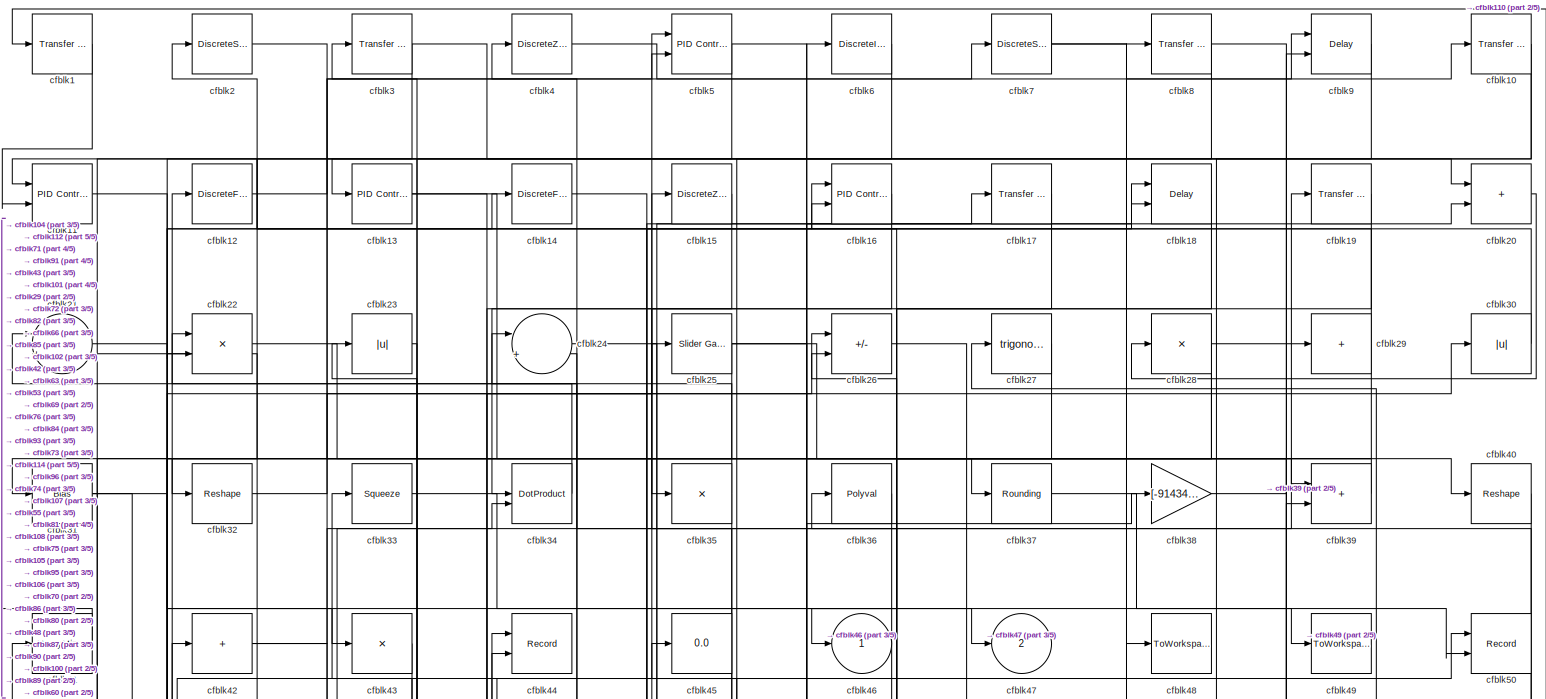
[diagram: root canvas - part 1/5, full width, top band]
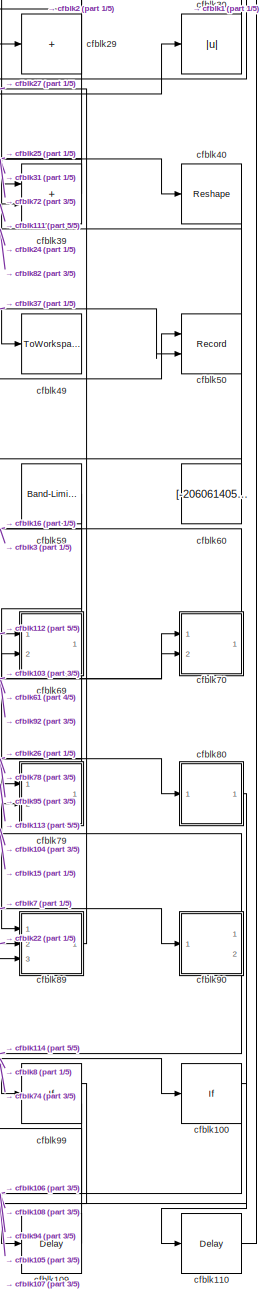
[diagram: root canvas - part 2/5, middle right region]
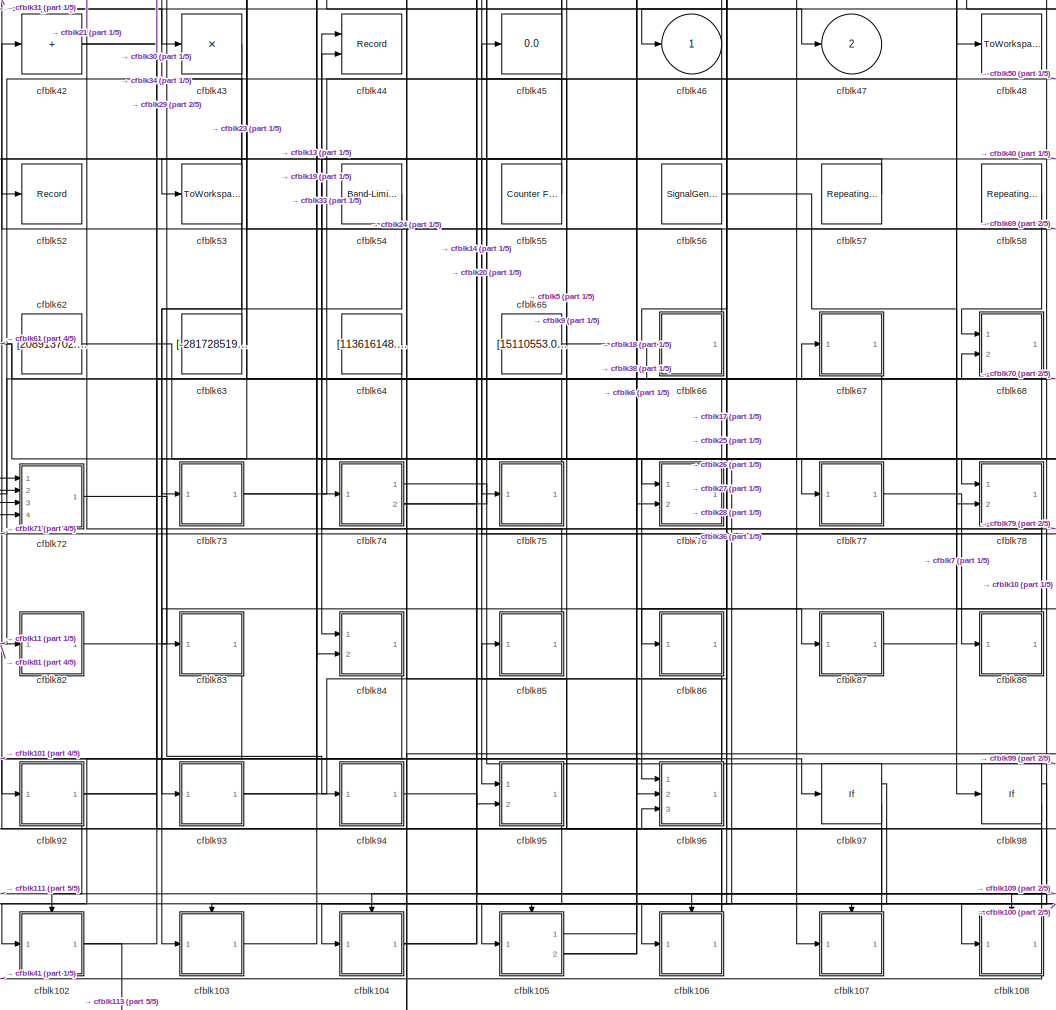
[diagram: root canvas - part 3/5, central region]
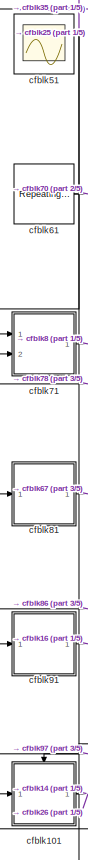
[diagram: root canvas - part 4/5, bottom left region]
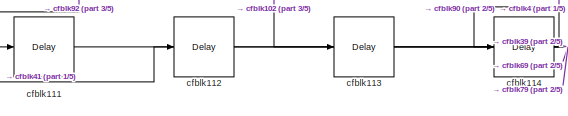
[diagram: root canvas - part 5/5, bottom left region]
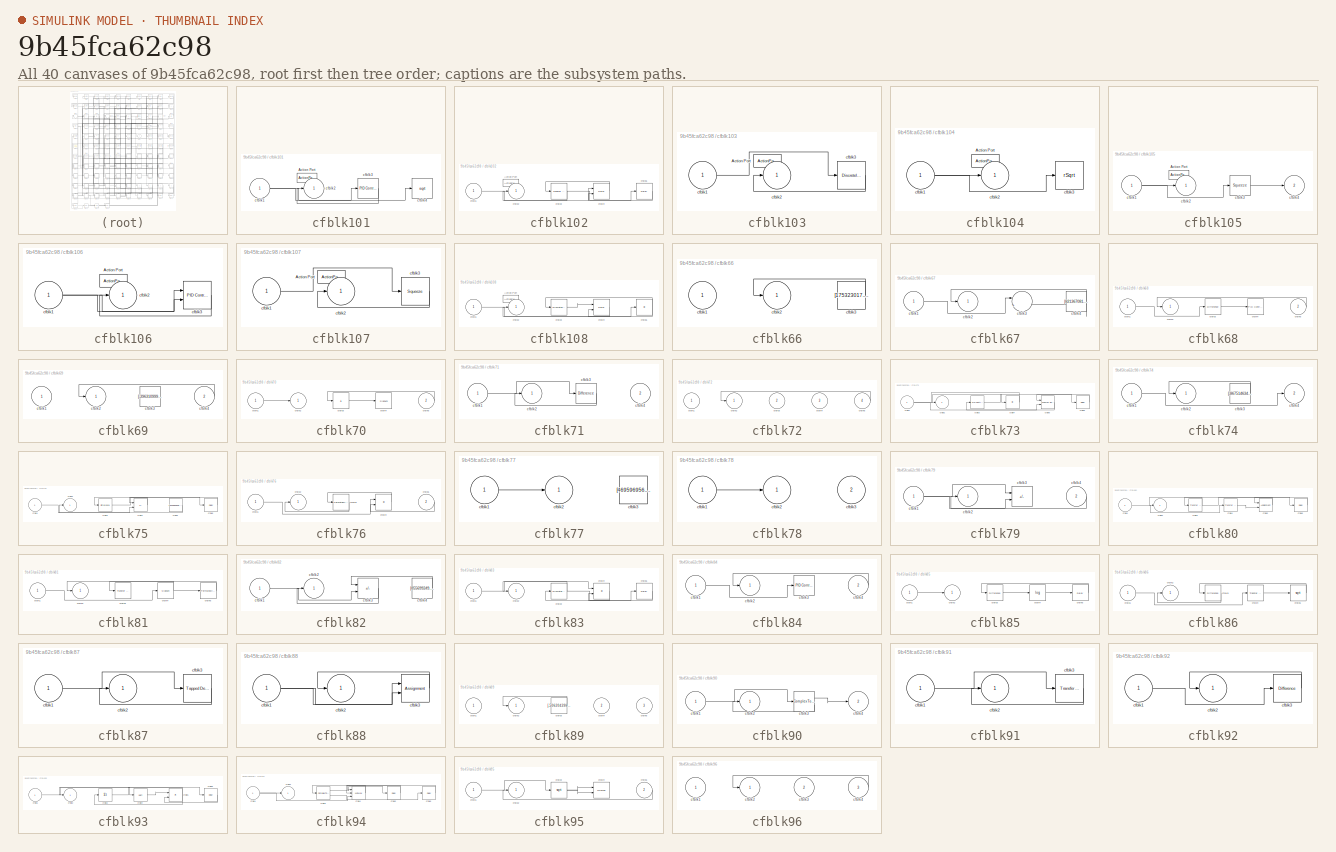
[diagram: thumbnail index - all 40 canvases of the model, root first then tree order]
MODEL slx_9b45fca62c98
KIND model
CONFIG AbsTol = auto
CONFIG EnableMultiTasking = off
CONFIG FixedStep = auto
CONFIG MaxStep = auto
CONFIG MinStep = auto
CONFIG RelTol = 1e-3
CONFIG SampleTimeConstraint = Unconstrained
CONFIG SolverName = VariableStepAuto
CONFIG StartTime = 0.0
CONFIG StopTime = 10.0
BLOCK [Reference] cfblk1  REF=simulink/Discrete/Transfer Fcn
Real Zero
  Ports = [1, 1]
  SourceBlock = simulink/Discrete/Transfer Fcn\nReal Zero
  SourceProductBaseCode = SL
  SourceType = Transfer Fcn Real Zero
BLOCK [Reference] cfblk10  REF=simulink/Discrete/Transfer Fcn
Real Zero
  Ports = [1, 1]
  SourceBlock = simulink/Discrete/Transfer Fcn\nReal Zero
  SourceProductBaseCode = SL
  SourceType = Transfer Fcn Real Zero
BLOCK [If] cfblk100
  IfExpression = u1 >= 0
  Ports = [1, 2]
  SampleTime = 1
BLOCK [SubSystem] cfblk101
  Ports = [1, 1, 0, 0, 0, 0, 0, 1]
  RequestExecContextInheritance = off
  TreatAsAtomicUnit = on
BLOCK [ActionPort] cfblk101/Action Port
  ActionPortLabel = if(u1 >= 0)
BLOCK [Inport] cfblk101/cfblk1
BLOCK [Outport] cfblk101/cfblk2
BLOCK [Reference] cfblk101/cfblk3  REF=slpidlib/PID Controller
  Ports = [1, 1]
  SourceBlock = slpidlib/PID Controller
  SourceProductBaseCode = SL
  SourceType = PID 1dof
BLOCK [Sqrt] cfblk101/cfblk4
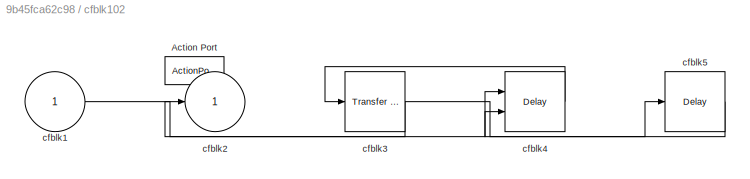
BLOCK [SubSystem] cfblk102
  Ports = [1, 1, 0, 0, 0, 0, 0, 1]
  RequestExecContextInheritance = off
  TreatAsAtomicUnit = on
BLOCK [ActionPort] cfblk102/Action Port
  ActionPortLabel = else
BLOCK [Inport] cfblk102/cfblk1
BLOCK [Outport] cfblk102/cfblk2
BLOCK [Reference] cfblk102/cfblk3  REF=simulink/Discrete/Transfer Fcn
Lead or Lag
  Ports = [1, 1]
  SourceBlock = simulink/Discrete/Transfer Fcn\nLead or Lag
  SourceProductBaseCode = SL
  SourceType = Lead or Lag Compensator
BLOCK [Delay] cfblk102/cfblk4
  DelayLengthSource = Input port
  InputPortMap = u0,p1
  Ports = [2, 1]
BLOCK [Delay] cfblk102/cfblk5
  InputPortMap = u0
  Ports = [1, 1]
BLOCK [SubSystem] cfblk103
  Ports = [1, 1, 0, 0, 0, 0, 0, 1]
  RequestExecContextInheritance = off
  TreatAsAtomicUnit = on
BLOCK [ActionPort] cfblk103/Action Port
  ActionPortLabel = if(u1 >= 0)
BLOCK [Inport] cfblk103/cfblk1
BLOCK [Outport] cfblk103/cfblk2
BLOCK [DiscreteIntegrator] cfblk103/cfblk3
  ICPrevOutput = DiscIntNeverNeededParam
  ICPrevScaledInput = DiscIntNeverNeededParam
  InitialConditionSetting = Auto
  Ports = [1, 1]
  SampleTime = -1
BLOCK [SubSystem] cfblk104
  Ports = [1, 1, 0, 0, 0, 0, 0, 1]
  RequestExecContextInheritance = off
  TreatAsAtomicUnit = on
BLOCK [ActionPort] cfblk104/Action Port
  ActionPortLabel = else
BLOCK [Inport] cfblk104/cfblk1
BLOCK [Outport] cfblk104/cfblk2
BLOCK [Sqrt] cfblk104/cfblk3
  AlgorithmType = Newton-Raphson
  Operator = rSqrt
BLOCK [SubSystem] cfblk105
  Ports = [1, 2, 0, 0, 0, 0, 0, 1]
  RequestExecContextInheritance = off
  TreatAsAtomicUnit = on
BLOCK [ActionPort] cfblk105/Action Port
  ActionPortLabel = if(u1 >= 0)
BLOCK [Inport] cfblk105/cfblk1
BLOCK [Outport] cfblk105/cfblk2
BLOCK [Squeeze] cfblk105/cfblk3
BLOCK [Outport] cfblk105/cfblk4
  Port = 2
BLOCK [SubSystem] cfblk106
  Ports = [1, 1, 0, 0, 0, 0, 0, 1]
  RequestExecContextInheritance = off
  TreatAsAtomicUnit = on
BLOCK [ActionPort] cfblk106/Action Port
  ActionPortLabel = else
BLOCK [Inport] cfblk106/cfblk1
BLOCK [Outport] cfblk106/cfblk2
BLOCK [Reference] cfblk106/cfblk3  REF=slpidlib/PID Controller (2DOF)
  Ports = [2, 1]
  SourceBlock = slpidlib/PID Controller (2DOF)
  SourceProductBaseCode = SL
  SourceType = PID 2dof
BLOCK [SubSystem] cfblk107
  Ports = [1, 1, 0, 0, 0, 0, 0, 1]
  RequestExecContextInheritance = off
  TreatAsAtomicUnit = on
BLOCK [ActionPort] cfblk107/Action Port
  ActionPortLabel = if(u1 >= 0)
BLOCK [Inport] cfblk107/cfblk1
BLOCK [Outport] cfblk107/cfblk2
BLOCK [Squeeze] cfblk107/cfblk3
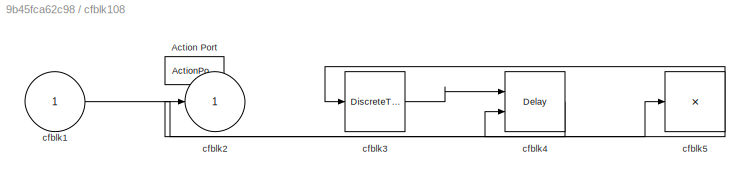
BLOCK [SubSystem] cfblk108
  Ports = [1, 1, 0, 0, 0, 0, 0, 1]
  RequestExecContextInheritance = off
  TreatAsAtomicUnit = on
BLOCK [ActionPort] cfblk108/Action Port
  ActionPortLabel = else
BLOCK [Inport] cfblk108/cfblk1
BLOCK [Outport] cfblk108/cfblk2
BLOCK [DiscreteTransferFcn] cfblk108/cfblk3
  InputPortMap = u0
  Ports = [1, 1]
BLOCK [Delay] cfblk108/cfblk4
  DelayLengthSource = Input port
  InputPortMap = u0,p1
  Ports = [2, 1]
BLOCK [Product] cfblk108/cfblk5
  Inputs = *
  Ports = [1, 1]
BLOCK [Delay] cfblk109
  InputPortMap = u0
  Ports = [1, 1]
  SampleTime = 1
BLOCK [Reference] cfblk11  REF=slpidlib/PID Controller (2DOF)
  Ports = [2, 1]
  SourceBlock = slpidlib/PID Controller (2DOF)
  SourceProductBaseCode = SL
  SourceType = PID 2dof
BLOCK [Delay] cfblk110
  InputPortMap = u0
  Ports = [1, 1]
  SampleTime = 1
BLOCK [Delay] cfblk111
  InputPortMap = u0
  Ports = [1, 1]
  SampleTime = 1
BLOCK [Delay] cfblk112
  InputPortMap = u0
  Ports = [1, 1]
  SampleTime = 1
BLOCK [Delay] cfblk113
  InputPortMap = u0
  Ports = [1, 1]
  SampleTime = 1
BLOCK [Delay] cfblk114
  InputPortMap = u0
  Ports = [1, 1]
  SampleTime = 1
BLOCK [DiscreteFilter] cfblk12
  InputPortMap = u0
  Ports = [1, 1]
  SampleTime = 1
BLOCK [Reference] cfblk13  REF=slpidlib/PID Controller
  Ports = [1, 1]
  SourceBlock = slpidlib/PID Controller
  SourceProductBaseCode = SL
  SourceType = PID 1dof
BLOCK [DiscreteFilter] cfblk14
  InputPortMap = u0
  Ports = [1, 1]
  SampleTime = 1
BLOCK [DiscreteZeroPole] cfblk15
  Gain = 1
  Poles = [0 0.5]
BLOCK [Reference] cfblk16  REF=slpidlib/PID Controller (2DOF)
  Ports = [2, 1]
  SourceBlock = slpidlib/PID Controller (2DOF)
  SourceProductBaseCode = SL
  SourceType = PID 2dof
BLOCK [Reference] cfblk17  REF=simulink/Discrete/Transfer Fcn
Real Zero
  Ports = [1, 1]
  SourceBlock = simulink/Discrete/Transfer Fcn\nReal Zero
  SourceProductBaseCode = SL
  SourceType = Transfer Fcn Real Zero
BLOCK [Delay] cfblk18
  InputPortMap = u0,e6
  Ports = [2, 1]
  SampleTime = 1
  ShowEnablePort = on
BLOCK [Reference] cfblk19  REF=simulink/Discrete/Transfer Fcn
First Order
  Ports = [1, 1]
  SourceBlock = simulink/Discrete/Transfer Fcn\nFirst Order
  SourceProductBaseCode = SL
  SourceType = First Order Transfer Fcn
BLOCK [DiscreteStateSpace] cfblk2
BLOCK [Sum] cfblk20
  IconShape = rectangular
  Ports = [2, 1]
BLOCK [Sum] cfblk21
  Inputs = |++
  Ports = [2, 1]
BLOCK [Product] cfblk22
  Inputs = **
  Ports = [2, 1]
BLOCK [Abs] cfblk23
  SaturateOnIntegerOverflow = off
BLOCK [Sum] cfblk24
  Inputs = |++
  Ports = [2, 1]
BLOCK [Reference] cfblk25  REF=simulink/Math
Operations/Slider
Gain
  Ports = [1, 1]
  SourceBlock = simulink/Math\nOperations/Slider\nGain
  SourceProductBaseCode = SL
  SourceType = Slider Gain
BLOCK [Sum] cfblk26
  IconShape = rectangular
  Inputs = +-
  Ports = [2, 1]
BLOCK [Trigonometry] cfblk27
  Ports = [1, 1]
BLOCK [Product] cfblk28
  Inputs = *
  Ports = [1, 1]
BLOCK [Sum] cfblk29
  IconShape = rectangular
  Inputs = +
  Ports = [1, 1]
BLOCK [Reference] cfblk3  REF=simulink/Discrete/Transfer Fcn
Lead or Lag
  Ports = [1, 1]
  SourceBlock = simulink/Discrete/Transfer Fcn\nLead or Lag
  SourceProductBaseCode = SL
  SourceType = Lead or Lag Compensator
BLOCK [Abs] cfblk30
  SaturateOnIntegerOverflow = off
BLOCK [Bias] cfblk31
  Bias = [186054001.121244]
  SaturateOnIntegerOverflow = off
BLOCK [Reshape] cfblk32
  Ports = [1, 1]
BLOCK [Squeeze] cfblk33
BLOCK [DotProduct] cfblk34
  OutDataTypeStr = Inherit: Inherit via internal rule
BLOCK [Product] cfblk35
  Inputs = *
  Ports = [1, 1]
BLOCK [Polyval] cfblk36
  Coefs = [ +2.081618890e-019, -1.441693666e-014, +4.719686976e-010, -8.536869453e-006, +1.621573104e-001, -8.087801117e+001 ]
BLOCK [Rounding] cfblk37
BLOCK [Gain] cfblk38
  Gain = [-914346093.737533]
BLOCK [Sum] cfblk39
  IconShape = rectangular
  Ports = [2, 1]
BLOCK [DiscreteZeroPole] cfblk4
  Gain = 1
  Poles = [0 0.5]
BLOCK [Reshape] cfblk40
  Ports = [1, 1]
BLOCK [UnaryMinus] cfblk41
BLOCK [Sum] cfblk42
  IconShape = rectangular
  Inputs = +
  Ports = [1, 1]
BLOCK [Product] cfblk43
  Inputs = *
  Ports = [1, 1]
BLOCK [Record] cfblk44
  CompatibilityTag = XY
  FileSettingsInternal = {"entries":[{"content":{"excelSettings":{"content":{},"type":"Streamout.ExcelSettings"}},"type":"Streamout.FileSettingStorage","uuid":"0ec32a6d-129c-448a-84d9-e3f9f98cc4c9"}],"packageUris":["http://schema.mathworks.com/mf0/streamout_blocks/R2020a"],"version":"1.0"}
  Layout = [1 1]
  Ports = [2]
  SignalsInternal = {"entries":[{"content":{"signals":[{"content":{"blockPath":["sampleModel138/cfblk44"],"channel":[],"dimensions":[1],"domain":"sampleModel138/cfblk44","lineColor":"#a2142f","plots":[1],"port":1,"sid":[""],"signalID":4913,"signalName":"cfblk75"},"type":"RecordBlkView.Signal","uuid":"27ef2e2c-91e5-4c87-a6cc-22f3c732ea85"},{"content":{"blockPath":["sampleModel138/cfblk44"],"channel":[],"dimensions":[1...<+383ch>
  VisualizationBindings = {"xyplotplugin":{"info":[{"series":[{"bindingParametersList":[{"parameter":"X-Axis","signalID":4913,"signalName":"cfblk75"},{"parameter":"Y-Axis","signalID":4917,"signalName":"cfblk88"}],"seriesID":22520}],"subplotID":1}]}}
BLOCK [Display] cfblk45
  Decimation = 1
  Ports = [1]
BLOCK [Outport] cfblk46
BLOCK [Outport] cfblk47
  Port = 2
BLOCK [ToWorkspace] cfblk48
  FixptAsFi = on
  MaxDataPoints = inf
  Ports = [1]
  SampleTime = -1
  SaveFormat = Timeseries
  VariableName = qtwnzqj
BLOCK [ToWorkspace] cfblk49
  FixptAsFi = on
  MaxDataPoints = inf
  Ports = [1]
  SampleTime = -1
  SaveFormat = Timeseries
  VariableName = xsobzaz
BLOCK [Reference] cfblk5  REF=slpidlib/PID Controller (2DOF)
  Ports = [2, 1]
  SourceBlock = slpidlib/PID Controller (2DOF)
  SourceProductBaseCode = SL
  SourceType = PID 2dof
BLOCK [Record] cfblk50
  CompatibilityTag = XY
  FileSettingsInternal = {"entries":[{"content":{"excelSettings":{"content":{},"type":"Streamout.ExcelSettings"}},"type":"Streamout.FileSettingStorage","uuid":"9970b36b-5162-47b6-9f2d-19ab88af9396"}],"packageUris":["http://schema.mathworks.com/mf0/streamout_blocks/R2020a"],"version":"1.0"}
  Layout = [1 1]
  Ports = [2]
  SignalsInternal = {"entries":[{"content":{"signals":[{"content":{"blockPath":["sampleModel138/cfblk50"],"channel":[],"dimensions":[1],"domain":"sampleModel138/cfblk50","lineColor":"#a2142f","plots":[1],"port":1,"sid":[""],"signalID":4901,"signalName":"cfblk73"},"type":"RecordBlkView.Signal","uuid":"992dab43-d31d-4e6b-8f1b-0748876e372e"},{"content":{"blockPath":["sampleModel138/cfblk50"],"channel":[],"dimensions":[1...<+383ch>
  VisualizationBindings = {"xyplotplugin":{"info":[{"series":[{"bindingParametersList":[{"parameter":"X-Axis","signalID":4901,"signalName":"cfblk73"},{"parameter":"Y-Axis","signalID":4905,"signalName":"cfblk21"}],"seriesID":47686}],"subplotID":1}]}}
BLOCK [Scope] cfblk51
  Floating = on
  NumInputPorts = 1
  Ports = []
BLOCK [Record] cfblk52
  FileSettingsInternal = {"entries":[{"content":{"excelSettings":{"content":{},"type":"Streamout.ExcelSettings"}},"type":"Streamout.FileSettingStorage","uuid":"c5d91396-2ea2-4a1f-87da-e2e17165e3b3"}],"packageUris":["http://schema.mathworks.com/mf0/streamout_blocks/R2020a"],"version":"1.0"}
  Ports = [1]
  SignalsInternal = {"entries":[{"content":{"signals":[{"content":{"blockPath":["sampleModel138/cfblk52"],"channel":[],"dimensions":[1],"domain":"sampleModel138/cfblk52","lineColor":"#77ac30","plots":[1],"port":1,"sid":[""],"signalID":4921,"signalName":"cfblk57"},"type":"RecordBlkView.Signal","uuid":"9231b3dd-1a07-41c1-9df2-7a13edf5831c"}]},"type":"RecordBlkView.InputSignals","uuid":"3d2a0eef-b37c-4f31-8457-3f3b95aa9...<+97ch>
  VisualizationBindings = {"sparklinesplugin":{"info":[{"bindingParametersList":[],"subplotID":1}]}}
BLOCK [ToWorkspace] cfblk53
  FixptAsFi = on
  MaxDataPoints = inf
  Ports = [1]
  SampleTime = -1
  SaveFormat = Timeseries
  VariableName = kvuwwxw
BLOCK [Reference] cfblk54  REF=simulink/Sources/Band-Limited
White Noise
  Ports = [0, 1]
  SourceBlock = simulink/Sources/Band-Limited\nWhite Noise
  SourceProductBaseCode = SL
  SourceType = Band-Limited White Noise.
BLOCK [Reference] cfblk55  REF=simulink/Sources/Counter
Free-Running
  Ports = [0, 1]
  SourceBlock = simulink/Sources/Counter\nFree-Running
  SourceProductBaseCode = SL
  SourceType = Counter Free-Running
BLOCK [SignalGenerator] cfblk56
  Amplitude = [-600550798.102604]
  Ports = [0, 1]
  Units = rad/sec
  WaveForm = sawtooth
BLOCK [Reference] cfblk57  REF=simulink/Sources/Repeating
Sequence
  Ports = [0, 1]
  SourceBlock = simulink/Sources/Repeating\nSequence
  SourceProductBaseCode = SL
  SourceType = Repeating table
BLOCK [Reference] cfblk58  REF=simulink/Sources/Repeating
Sequence
  Ports = [0, 1]
  SourceBlock = simulink/Sources/Repeating\nSequence
  SourceProductBaseCode = SL
  SourceType = Repeating table
BLOCK [Reference] cfblk59  REF=simulink/Sources/Band-Limited
White Noise
  Ports = [0, 1]
  SourceBlock = simulink/Sources/Band-Limited\nWhite Noise
  SourceProductBaseCode = SL
  SourceType = Band-Limited White Noise.
BLOCK [DiscreteIntegrator] cfblk6
  ICPrevOutput = DiscIntNeverNeededParam
  ICPrevScaledInput = DiscIntNeverNeededParam
  InitialConditionSetting = Auto
  Ports = [1, 1]
BLOCK [Constant] cfblk60
  SampleTime = 1
  Value = [-206061405.104756]
BLOCK [Reference] cfblk61  REF=simulink/Sources/Repeating
Sequence
Stair
  Ports = [0, 1]
  SourceBlock = simulink/Sources/Repeating\nSequence\nStair
  SourceProductBaseCode = SL
  SourceType = Repeating Sequence Stair
BLOCK [Constant] cfblk62
  SampleTime = 1
  Value = [208913702.766036]
BLOCK [Constant] cfblk63
  SampleTime = 1
  Value = [-281728519.035711]
BLOCK [Constant] cfblk64
  SampleTime = 1
  Value = [113616148.882551]
BLOCK [Constant] cfblk65
  SampleTime = 1
  Value = [15110553.024495]
BLOCK [SubSystem] cfblk66
  Ports = [1, 1]
  RequestExecContextInheritance = off
BLOCK [Inport] cfblk66/cfblk1
BLOCK [Outport] cfblk66/cfblk2
BLOCK [Constant] cfblk66/cfblk3
  SampleTime = 1
  Value = [175323017.337696]
BLOCK [SubSystem] cfblk67
  Ports = [1, 1]
  RequestExecContextInheritance = off
BLOCK [Inport] cfblk67/cfblk1
BLOCK [Outport] cfblk67/cfblk2
BLOCK [Sum] cfblk67/cfblk3
  Inputs = |++
  Ports = [2, 1]
BLOCK [Constant] cfblk67/cfblk4
  SampleTime = 1
  Value = [821367081.142924]
BLOCK [SubSystem] cfblk68
  Ports = [2, 1]
  RequestExecContextInheritance = off
BLOCK [Inport] cfblk68/cfblk1
BLOCK [Outport] cfblk68/cfblk2
BLOCK [Reference] cfblk68/cfblk3  REF=simulink/Discrete/Difference
  Ports = [1, 1]
  SourceBlock = simulink/Discrete/Difference
  SourceProductBaseCode = SL
  SourceType = Difference
BLOCK [Reference] cfblk68/cfblk4  REF=slpidlib/PID Controller
  Ports = [1, 1]
  SourceBlock = slpidlib/PID Controller
  SourceProductBaseCode = SL
  SourceType = PID 1dof
BLOCK [Inport] cfblk68/cfblk5
  Port = 2
BLOCK [SubSystem] cfblk69
  Ports = [2, 1]
  RequestExecContextInheritance = off
BLOCK [Inport] cfblk69/cfblk1
BLOCK [Outport] cfblk69/cfblk2
BLOCK [Constant] cfblk69/cfblk3
  SampleTime = 1
  Value = [-396310999.072800]
BLOCK [Inport] cfblk69/cfblk4
  Port = 2
BLOCK [DiscreteStateSpace] cfblk7
BLOCK [SubSystem] cfblk70
  Ports = [2, 1]
  RequestExecContextInheritance = off
BLOCK [Inport] cfblk70/cfblk1
BLOCK [Outport] cfblk70/cfblk2
BLOCK [Sum] cfblk70/cfblk3
  IconShape = rectangular
  Inputs = +
  Ports = [1, 1]
BLOCK [Signum] cfblk70/cfblk4
BLOCK [Inport] cfblk70/cfblk5
  Port = 2
BLOCK [SubSystem] cfblk71
  Ports = [2, 1]
  RequestExecContextInheritance = off
BLOCK [Inport] cfblk71/cfblk1
BLOCK [Outport] cfblk71/cfblk2
BLOCK [Reference] cfblk71/cfblk3  REF=simulink/Discrete/Difference
  Ports = [1, 1]
  SourceBlock = simulink/Discrete/Difference
  SourceProductBaseCode = SL
  SourceType = Difference
BLOCK [Inport] cfblk71/cfblk4
  Port = 2
BLOCK [SubSystem] cfblk72
  Ports = [4, 1]
  RequestExecContextInheritance = off
BLOCK [Inport] cfblk72/cfblk1
BLOCK [Outport] cfblk72/cfblk2
BLOCK [Inport] cfblk72/cfblk3
  Port = 2
BLOCK [Inport] cfblk72/cfblk4
  Port = 3
BLOCK [Inport] cfblk72/cfblk5
  Port = 4
BLOCK [SubSystem] cfblk73
  Ports = [1, 1]
  RequestExecContextInheritance = off
BLOCK [Inport] cfblk73/cfblk1
BLOCK [Outport] cfblk73/cfblk2
BLOCK [Reference] cfblk73/cfblk3  REF=slpidlib/PID Controller
  Ports = [1, 1]
  SourceBlock = slpidlib/PID Controller
  SourceProductBaseCode = SL
  SourceType = PID 1dof
BLOCK [Product] cfblk73/cfblk4
  Inputs = *
  Ports = [1, 1]
BLOCK [Reference] cfblk73/cfblk5  REF=simulink/Math
Operations/MinMax
Running
Resettable
  Ports = [2, 1]
  SourceBlock = simulink/Math\nOperations/MinMax\nRunning\nResettable
  SourceProductBaseCode = SL
  SourceType = MinMax Running Resettable
BLOCK [Delay] cfblk73/cfblk6
  InputPortMap = u0
  Ports = [1, 1]
  SampleTime = 1
BLOCK [SubSystem] cfblk74
  Ports = [1, 2]
  RequestExecContextInheritance = off
BLOCK [Inport] cfblk74/cfblk1
BLOCK [Outport] cfblk74/cfblk2
BLOCK [Constant] cfblk74/cfblk3
  SampleTime = 1
  Value = [-867514634.448639]
BLOCK [Outport] cfblk74/cfblk4
  Port = 2
BLOCK [SubSystem] cfblk75
  Ports = [1, 1]
  RequestExecContextInheritance = off
BLOCK [Inport] cfblk75/cfblk1
BLOCK [Outport] cfblk75/cfblk2
BLOCK [Reference] cfblk75/cfblk3  REF=simulink/Discrete/Difference
  Ports = [1, 1]
  SourceBlock = simulink/Discrete/Difference
  SourceProductBaseCode = SL
  SourceType = Difference
BLOCK [Sum] cfblk75/cfblk4
  IconShape = rectangular
  Inputs = +-
  Ports = [2, 1]
BLOCK [Constant] cfblk75/cfblk5
  SampleTime = 1
  Value = [611920103.085401]
BLOCK [Delay] cfblk75/cfblk6
  InputPortMap = u0
  Ports = [1, 1]
  SampleTime = 1
BLOCK [SubSystem] cfblk76
  Ports = [2, 1]
  RequestExecContextInheritance = off
BLOCK [Inport] cfblk76/cfblk1
BLOCK [Outport] cfblk76/cfblk2
BLOCK [PermuteDimensions] cfblk76/cfblk3
BLOCK [Product] cfblk76/cfblk4
  Ports = [2, 1]
BLOCK [Inport] cfblk76/cfblk5
  Port = 2
BLOCK [SubSystem] cfblk77
  Ports = [1, 1]
  RequestExecContextInheritance = off
BLOCK [Inport] cfblk77/cfblk1
BLOCK [Outport] cfblk77/cfblk2
BLOCK [Constant] cfblk77/cfblk3
  SampleTime = 1
  Value = [469596956.295731]
BLOCK [SubSystem] cfblk78
  Ports = [2, 1]
  RequestExecContextInheritance = off
BLOCK [Inport] cfblk78/cfblk1
BLOCK [Outport] cfblk78/cfblk2
BLOCK [Inport] cfblk78/cfblk3
  Port = 2
BLOCK [SubSystem] cfblk79
  Ports = [2, 1]
  RequestExecContextInheritance = off
BLOCK [Inport] cfblk79/cfblk1
BLOCK [Outport] cfblk79/cfblk2
BLOCK [Sum] cfblk79/cfblk3
  IconShape = rectangular
  Inputs = +-
  Ports = [2, 1]
BLOCK [Inport] cfblk79/cfblk4
  Port = 2
BLOCK [Reference] cfblk8  REF=simulink/Discrete/Transfer Fcn
Real Zero
  Ports = [1, 1]
  SourceBlock = simulink/Discrete/Transfer Fcn\nReal Zero
  SourceProductBaseCode = SL
  SourceType = Transfer Fcn Real Zero
BLOCK [SubSystem] cfblk80
  Ports = [1, 1]
  RequestExecContextInheritance = off
BLOCK [Inport] cfblk80/cfblk1
BLOCK [Outport] cfblk80/cfblk2
BLOCK [Reference] cfblk80/cfblk3  REF=simulink/Discrete/Transfer Fcn
First Order
  Ports = [1, 1]
  SourceBlock = simulink/Discrete/Transfer Fcn\nFirst Order
  SourceProductBaseCode = SL
  SourceType = First Order Transfer Fcn
BLOCK [Reference] cfblk80/cfblk4  REF=simulink/Discrete/Transfer Fcn
Lead or Lag
  Ports = [1, 1]
  SourceBlock = simulink/Discrete/Transfer Fcn\nLead or Lag
  SourceProductBaseCode = SL
  SourceType = Lead or Lag Compensator
BLOCK [Assignment] cfblk80/cfblk5
  DiagnosticForDimensions = Warning
  IndexOptions = Index vector (dialog)
  Indices = 1
  OutputSizes = 1
  Ports = [2, 1]
BLOCK [Delay] cfblk80/cfblk6
  InputPortMap = u0
  Ports = [1, 1]
  SampleTime = 1
BLOCK [SubSystem] cfblk81
  Ports = [1, 1]
  RequestExecContextInheritance = off
BLOCK [Inport] cfblk81/cfblk1
BLOCK [Outport] cfblk81/cfblk2
BLOCK [Reference] cfblk81/cfblk3  REF=simulink/Discrete/Transfer Fcn
First Order
  Ports = [1, 1]
  SourceBlock = simulink/Discrete/Transfer Fcn\nFirst Order
  SourceProductBaseCode = SL
  SourceType = First Order Transfer Fcn
BLOCK [Signum] cfblk81/cfblk4
BLOCK [PermuteDimensions] cfblk81/cfblk5
BLOCK [SubSystem] cfblk82
  Ports = [1, 1]
  RequestExecContextInheritance = off
BLOCK [Inport] cfblk82/cfblk1
BLOCK [Outport] cfblk82/cfblk2
BLOCK [Sum] cfblk82/cfblk3
  IconShape = rectangular
  Inputs = --
  Ports = [2, 1]
BLOCK [Constant] cfblk82/cfblk4
  SampleTime = 1
  Value = [855699249.891037]
BLOCK [SubSystem] cfblk83
  Ports = [1, 1]
  RequestExecContextInheritance = off
BLOCK [Inport] cfblk83/cfblk1
BLOCK [Outport] cfblk83/cfblk2
BLOCK [DiscreteIntegrator] cfblk83/cfblk3
  ICPrevOutput = DiscIntNeverNeededParam
  ICPrevScaledInput = DiscIntNeverNeededParam
  InitialConditionSetting = Auto
  Ports = [1, 1]
BLOCK [Product] cfblk83/cfblk4
  Inputs = **
  Ports = [2, 1]
BLOCK [Delay] cfblk83/cfblk5
  InputPortMap = u0
  Ports = [1, 1]
  SampleTime = 1
BLOCK [SubSystem] cfblk84
  Ports = [2, 1]
  RequestExecContextInheritance = off
BLOCK [Inport] cfblk84/cfblk1
BLOCK [Outport] cfblk84/cfblk2
BLOCK [Reference] cfblk84/cfblk3  REF=slpidlib/PID Controller
  Ports = [1, 1]
  SourceBlock = slpidlib/PID Controller
  SourceProductBaseCode = SL
  SourceType = PID 1dof
BLOCK [Inport] cfblk84/cfblk4
  Port = 2
BLOCK [SubSystem] cfblk85
  Ports = [1, 1]
  RequestExecContextInheritance = off
BLOCK [Inport] cfblk85/cfblk1
BLOCK [Outport] cfblk85/cfblk2
BLOCK [Reference] cfblk85/cfblk3  REF=simulink/Discrete/Difference
  Ports = [1, 1]
  SourceBlock = simulink/Discrete/Difference
  SourceProductBaseCode = SL
  SourceType = Difference
BLOCK [Math] cfblk85/cfblk4
  Operator = log
  Ports = [1, 1]
BLOCK [Delay] cfblk85/cfblk5
  InputPortMap = u0
  Ports = [1, 1]
  SampleTime = 1
BLOCK [SubSystem] cfblk86
  Ports = [1, 1]
  RequestExecContextInheritance = off
BLOCK [Inport] cfblk86/cfblk1
BLOCK [Outport] cfblk86/cfblk2
BLOCK [Reference] cfblk86/cfblk3  REF=simulink/Discrete/Difference
  Ports = [1, 1]
  SourceBlock = simulink/Discrete/Difference
  SourceProductBaseCode = SL
  SourceType = Difference
BLOCK [Reference] cfblk86/cfblk4  REF=simulink/Discrete/Transfer Fcn
First Order
  Ports = [1, 1]
  SourceBlock = simulink/Discrete/Transfer Fcn\nFirst Order
  SourceProductBaseCode = SL
  SourceType = First Order Transfer Fcn
BLOCK [Sqrt] cfblk86/cfblk5
BLOCK [SubSystem] cfblk87
  Ports = [1, 1]
  RequestExecContextInheritance = off
BLOCK [Inport] cfblk87/cfblk1
BLOCK [Outport] cfblk87/cfblk2
BLOCK [Reference] cfblk87/cfblk3  REF=simulink/Discrete/Tapped Delay
  Ports = [1, 1]
  SourceBlock = simulink/Discrete/Tapped Delay
  SourceProductBaseCode = SL
  SourceType = Tapped Delay Line
BLOCK [SubSystem] cfblk88
  Ports = [1, 1]
  RequestExecContextInheritance = off
BLOCK [Inport] cfblk88/cfblk1
BLOCK [Outport] cfblk88/cfblk2
BLOCK [Assignment] cfblk88/cfblk3
  DiagnosticForDimensions = Warning
  IndexOptions = Index vector (dialog)
  Indices = 1
  OutputSizes = 1
  Ports = [2, 1]
BLOCK [SubSystem] cfblk89
  Ports = [3, 1]
  RequestExecContextInheritance = off
BLOCK [Inport] cfblk89/cfblk1
BLOCK [Outport] cfblk89/cfblk2
BLOCK [Constant] cfblk89/cfblk3
  SampleTime = 1
  Value = [-506204398.135348]
BLOCK [Inport] cfblk89/cfblk4
  Port = 2
BLOCK [Inport] cfblk89/cfblk5
  Port = 3
BLOCK [Delay] cfblk9
  InputPortMap = u0,e6
  Ports = [2, 1]
  SampleTime = 1
  ShowEnablePort = on
BLOCK [SubSystem] cfblk90
  Ports = [1, 2]
  RequestExecContextInheritance = off
BLOCK [Inport] cfblk90/cfblk1
BLOCK [Outport] cfblk90/cfblk2
BLOCK [ComplexToMagnitudeAngle] cfblk90/cfblk3
  Ports = [1, 2]
BLOCK [Outport] cfblk90/cfblk4
  Port = 2
BLOCK [SubSystem] cfblk91
  Ports = [1, 1]
  RequestExecContextInheritance = off
BLOCK [Inport] cfblk91/cfblk1
BLOCK [Outport] cfblk91/cfblk2
BLOCK [Reference] cfblk91/cfblk3  REF=simulink/Discrete/Transfer Fcn
First Order
  Ports = [1, 1]
  SourceBlock = simulink/Discrete/Transfer Fcn\nFirst Order
  SourceProductBaseCode = SL
  SourceType = First Order Transfer Fcn
BLOCK [SubSystem] cfblk92
  Ports = [1, 1]
  RequestExecContextInheritance = off
BLOCK [Inport] cfblk92/cfblk1
BLOCK [Outport] cfblk92/cfblk2
BLOCK [Reference] cfblk92/cfblk3  REF=simulink/Discrete/Difference
  Ports = [1, 1]
  SourceBlock = simulink/Discrete/Difference
  SourceProductBaseCode = SL
  SourceType = Difference
BLOCK [SubSystem] cfblk93
  Ports = [1, 1]
  RequestExecContextInheritance = off
BLOCK [Inport] cfblk93/cfblk1
BLOCK [Outport] cfblk93/cfblk2
BLOCK [UnitDelay] cfblk93/cfblk3
  HasFrameUpgradeWarning = on
BLOCK [Sqrt] cfblk93/cfblk4
BLOCK [Product] cfblk93/cfblk5
  Inputs = **
  Ports = [2, 1]
BLOCK [Delay] cfblk93/cfblk6
  InputPortMap = u0
  Ports = [1, 1]
  SampleTime = 1
BLOCK [SubSystem] cfblk94
  Ports = [1, 1]
  RequestExecContextInheritance = off
BLOCK [Inport] cfblk94/cfblk1
BLOCK [Outport] cfblk94/cfblk2
BLOCK [ComplexToRealImag] cfblk94/cfblk3
  Ports = [1, 2]
BLOCK [MinMax] cfblk94/cfblk4
  Function = max
  Inputs = 3
  Ports = [3, 1]
BLOCK [Delay] cfblk94/cfblk5
  InputPortMap = u0
  Ports = [1, 1]
  SampleTime = 1
BLOCK [Delay] cfblk94/cfblk6
  InputPortMap = u0
  Ports = [1, 1]
  SampleTime = 1
BLOCK [SubSystem] cfblk95
  Ports = [2, 1]
  RequestExecContextInheritance = off
BLOCK [Inport] cfblk95/cfblk1
BLOCK [Outport] cfblk95/cfblk2
BLOCK [Sqrt] cfblk95/cfblk3
BLOCK [MinMax] cfblk95/cfblk4
  Function = max
  Inputs = 2
  Ports = [2, 1]
BLOCK [Inport] cfblk95/cfblk5
  Port = 2
BLOCK [SubSystem] cfblk96
  Ports = [3, 1]
  RequestExecContextInheritance = off
BLOCK [Inport] cfblk96/cfblk1
BLOCK [Outport] cfblk96/cfblk2
BLOCK [Inport] cfblk96/cfblk3
  Port = 2
BLOCK [Inport] cfblk96/cfblk4
  Port = 3
BLOCK [If] cfblk97
  IfExpression = u1 >= 0
  Ports = [1, 2]
  SampleTime = 1
BLOCK [If] cfblk98
  IfExpression = u1 >= 0
  Ports = [1, 2]
  SampleTime = 1
BLOCK [If] cfblk99
  IfExpression = u1 >= 0
  Ports = [1, 2]
  SampleTime = 1
LINE cfblk100:1 -> cfblk107:ifaction
LINE cfblk100:2 -> cfblk108:ifaction
NET cfblk101/cfblk1:1 -> cfblk101/cfblk3:1, cfblk101/cfblk4:1
LINE cfblk101/cfblk3:1 -> cfblk101/cfblk2:1
NET cfblk101:1 -> cfblk14:1, cfblk26:2
LINE cfblk102/cfblk1:1 -> cfblk102/cfblk4:1
NET cfblk102/cfblk3:1 -> cfblk102/cfblk2:1, cfblk102/cfblk5:1
LINE cfblk102/cfblk4:1 -> cfblk102/cfblk3:1
LINE cfblk102/cfblk5:1 -> cfblk102/cfblk4:2
NET cfblk102:1 -> cfblk113:1, cfblk34:2
LINE cfblk103/cfblk1:1 -> cfblk103/cfblk3:1
LINE cfblk103/cfblk3:1 -> cfblk103/cfblk2:1
LINE cfblk103:1 -> cfblk69:2
NET cfblk104/cfblk1:1 -> cfblk104/cfblk2:1, cfblk104/cfblk3:1
NET cfblk104:1 -> cfblk18:2, cfblk79:2
NET cfblk105/cfblk1:1 -> cfblk105/cfblk2:1, cfblk105/cfblk3:1
LINE cfblk105/cfblk3:1 -> cfblk105/cfblk4:1
LINE cfblk105:1 -> cfblk6:1
NET cfblk105:2 -> cfblk18:1, cfblk38:1
NET cfblk106/cfblk1:1 -> cfblk106/cfblk3:1, cfblk106/cfblk3:2
LINE cfblk106/cfblk3:1 -> cfblk106/cfblk2:1
NET cfblk106:1 -> cfblk42:1, cfblk85:1
LINE cfblk107/cfblk1:1 -> cfblk107/cfblk3:1
LINE cfblk107/cfblk3:1 -> cfblk107/cfblk2:1
LINE cfblk107:1 -> cfblk26:1
LINE cfblk108/cfblk1:1 -> cfblk108/cfblk5:1
LINE cfblk108/cfblk3:1 -> cfblk108/cfblk4:1
LINE cfblk108/cfblk4:1 -> cfblk108/cfblk2:1
NET cfblk108/cfblk5:1 -> cfblk108/cfblk3:1, cfblk108/cfblk4:2
NET cfblk108:1 -> cfblk41:1, cfblk45:1
LINE cfblk109:1 -> cfblk72:1
NET cfblk10:1 -> cfblk108:1, cfblk71:1
LINE cfblk110:1 -> cfblk1:1
LINE cfblk111:1 -> cfblk39:2
LINE cfblk112:1 -> cfblk69:1
LINE cfblk113:1 -> cfblk79:1
LINE cfblk114:1 -> cfblk4:1
LINE cfblk11:1 -> cfblk82:1
LINE cfblk12:1 -> cfblk5:2
NET cfblk13:1 -> cfblk37:1, cfblk76:2
LINE cfblk14:1 -> cfblk76:1
LINE cfblk15:1 -> cfblk35:1
LINE cfblk16:1 -> cfblk34:1
LINE cfblk17:1 -> cfblk106:1
LINE cfblk18:1 -> cfblk46:1
LINE cfblk19:1 -> cfblk84:2
LINE cfblk1:1 -> cfblk11:2
LINE cfblk20:1 -> cfblk28:1
LINE cfblk21:1 -> cfblk50:2
LINE cfblk22:1 -> cfblk89:2
LINE cfblk23:1 -> cfblk53:1
LINE cfblk24:1 -> cfblk107:1
NET cfblk25:1 -> cfblk40:1, cfblk89:3, cfblk91:1
LINE cfblk26:1 -> cfblk80:1
LINE cfblk27:1 -> cfblk86:1
NET cfblk28:1 -> cfblk19:1, cfblk66:1, cfblk72:3
NET cfblk29:1 -> cfblk2:1, cfblk72:2
LINE cfblk2:1 -> cfblk39:1
LINE cfblk30:1 -> cfblk11:1
NET cfblk31:1 -> cfblk43:1, cfblk72:4
LINE cfblk32:1 -> cfblk10:1
LINE cfblk33:1 -> cfblk47:1
LINE cfblk34:1 -> cfblk12:1
NET cfblk35:1 -> cfblk21:1, cfblk81:1
LINE cfblk36:1 -> cfblk95:1
LINE cfblk37:1 -> cfblk49:1
LINE cfblk38:1 -> cfblk9:2
LINE cfblk39:1 -> cfblk31:1
NET cfblk3:1 -> cfblk20:1, cfblk22:2
LINE cfblk40:1 -> cfblk74:1
LINE cfblk41:1 -> cfblk112:1
NET cfblk42:1 -> cfblk30:1, cfblk97:1
LINE cfblk43:1 -> cfblk103:1
LINE cfblk4:1 -> cfblk7:1
LINE cfblk54:1 -> cfblk83:1
LINE cfblk55:1 -> cfblk5:1
LINE cfblk56:1 -> cfblk98:1
LINE cfblk57:1 -> cfblk52:1
LINE cfblk58:1 -> cfblk68:1
LINE cfblk59:1 -> cfblk89:1
NET cfblk5:1 -> cfblk73:1, cfblk87:1
LINE cfblk60:1 -> cfblk24:2
NET cfblk61:1 -> cfblk70:2, cfblk78:2
LINE cfblk62:1 -> cfblk77:1
LINE cfblk63:1 -> cfblk33:1
LINE cfblk64:1 -> cfblk84:1
LINE cfblk65:1 -> cfblk68:2
LINE cfblk66/cfblk3:1 -> cfblk66/cfblk2:1
LINE cfblk66:1 -> cfblk22:1
LINE cfblk67/cfblk1:1 -> cfblk67/cfblk3:1
NET cfblk67/cfblk4:1 -> cfblk67/cfblk2:1, cfblk67/cfblk3:2
LINE cfblk67:1 -> cfblk104:1
LINE cfblk68/cfblk1:1 -> cfblk68/cfblk3:1
LINE cfblk68/cfblk3:1 -> cfblk68/cfblk4:1
LINE cfblk68/cfblk5:1 -> cfblk68/cfblk2:1
LINE cfblk68:1 -> cfblk96:1
LINE cfblk69/cfblk4:1 -> cfblk69/cfblk2:1
NET cfblk69:1 -> cfblk3:1, cfblk95:2
LINE cfblk6:1 -> cfblk32:1
LINE cfblk70/cfblk1:1 -> cfblk70/cfblk2:1
LINE cfblk70/cfblk3:1 -> cfblk70/cfblk4:1
LINE cfblk70/cfblk5:1 -> cfblk70/cfblk3:1
LINE cfblk70:1 -> cfblk16:1
LINE cfblk71/cfblk1:1 -> cfblk71/cfblk3:1
LINE cfblk71/cfblk3:1 -> cfblk71/cfblk2:1
LINE cfblk71:1 -> cfblk8:1
LINE cfblk72/cfblk5:1 -> cfblk72/cfblk2:1
LINE cfblk72:1 -> cfblk94:1
NET cfblk73/cfblk1:1 -> cfblk73/cfblk4:1, cfblk73/cfblk5:2
LINE cfblk73/cfblk3:1 -> cfblk73/cfblk6:1
LINE cfblk73/cfblk4:1 -> cfblk73/cfblk2:1
LINE cfblk73/cfblk5:1 -> cfblk73/cfblk3:1
LINE cfblk73/cfblk6:1 -> cfblk73/cfblk5:1
NET cfblk73:1 -> cfblk50:1, cfblk96:2
LINE cfblk74/cfblk1:1 -> cfblk74/cfblk4:1
LINE cfblk74/cfblk3:1 -> cfblk74/cfblk2:1
LINE cfblk74:1 -> cfblk99:1
NET cfblk74:2 -> cfblk17:1, cfblk20:2
LINE cfblk75/cfblk1:1 -> cfblk75/cfblk4:2
LINE cfblk75/cfblk3:1 -> cfblk75/cfblk6:1
LINE cfblk75/cfblk4:1 -> cfblk75/cfblk3:1
LINE cfblk75/cfblk5:1 -> cfblk75/cfblk2:1
LINE cfblk75/cfblk6:1 -> cfblk75/cfblk4:1
LINE cfblk75:1 -> cfblk44:1
LINE cfblk76/cfblk1:1 -> cfblk76/cfblk4:1
LINE cfblk76/cfblk3:1 -> cfblk76/cfblk2:1
LINE cfblk76/cfblk4:1 -> cfblk76/cfblk3:1
LINE cfblk76/cfblk5:1 -> cfblk76/cfblk4:2
LINE cfblk76:1 -> cfblk23:1
LINE cfblk77/cfblk1:1 -> cfblk77/cfblk2:1
LINE cfblk77:1 -> cfblk88:1
LINE cfblk78/cfblk1:1 -> cfblk78/cfblk2:1
NET cfblk78:1 -> cfblk71:2, cfblk93:1
NET cfblk79/cfblk1:1 -> cfblk79/cfblk3:1, cfblk79/cfblk3:2
LINE cfblk79/cfblk4:1 -> cfblk79/cfblk2:1
LINE cfblk79:1 -> cfblk78:1
NET cfblk7:1 -> cfblk48:1, cfblk90:1
LINE cfblk80/cfblk1:1 -> cfblk80/cfblk4:1
NET cfblk80/cfblk3:1 -> cfblk80/cfblk2:1, cfblk80/cfblk6:1
LINE cfblk80/cfblk4:1 -> cfblk80/cfblk5:2
LINE cfblk80/cfblk5:1 -> cfblk80/cfblk3:1
LINE cfblk80/cfblk6:1 -> cfblk80/cfblk5:1
LINE cfblk80:1 -> cfblk110:1
LINE cfblk81/cfblk1:1 -> cfblk81/cfblk4:1
NET cfblk81/cfblk4:1 -> cfblk81/cfblk3:1, cfblk81/cfblk5:1
LINE cfblk81/cfblk5:1 -> cfblk81/cfblk2:1
LINE cfblk81:1 -> cfblk67:1
LINE cfblk82/cfblk1:1 -> cfblk82/cfblk3:2
LINE cfblk82/cfblk3:1 -> cfblk82/cfblk2:1
LINE cfblk82/cfblk4:1 -> cfblk82/cfblk3:1
LINE cfblk82:1 -> cfblk29:1
LINE cfblk83/cfblk1:1 -> cfblk83/cfblk4:1
NET cfblk83/cfblk3:1 -> cfblk83/cfblk2:1, cfblk83/cfblk5:1
LINE cfblk83/cfblk4:1 -> cfblk83/cfblk3:1
LINE cfblk83/cfblk5:1 -> cfblk83/cfblk4:2
LINE cfblk83:1 -> cfblk102:1
LINE cfblk84/cfblk1:1 -> cfblk84/cfblk3:1
LINE cfblk84/cfblk4:1 -> cfblk84/cfblk2:1
LINE cfblk84:1 -> cfblk92:1
LINE cfblk85/cfblk1:1 -> cfblk85/cfblk2:1
LINE cfblk85/cfblk3:1 -> cfblk85/cfblk4:1
LINE cfblk85/cfblk4:1 -> cfblk85/cfblk5:1
LINE cfblk85/cfblk5:1 -> cfblk85/cfblk3:1
LINE cfblk85:1 -> cfblk21:2
LINE cfblk86/cfblk1:1 -> cfblk86/cfblk4:1
LINE cfblk86/cfblk3:1 -> cfblk86/cfblk2:1
LINE cfblk86/cfblk4:1 -> cfblk86/cfblk5:1
LINE cfblk86/cfblk5:1 -> cfblk86/cfblk3:1
LINE cfblk86:1 -> cfblk101:1
LINE cfblk87/cfblk1:1 -> cfblk87/cfblk3:1
LINE cfblk87/cfblk3:1 -> cfblk87/cfblk2:1
LINE cfblk87:1 -> cfblk9:1
NET cfblk88/cfblk1:1 -> cfblk88/cfblk3:1, cfblk88/cfblk3:2
LINE cfblk88/cfblk3:1 -> cfblk88/cfblk2:1
LINE cfblk88:1 -> cfblk44:2
LINE cfblk89/cfblk3:1 -> cfblk89/cfblk2:1
LINE cfblk89:1 -> cfblk27:1
NET cfblk8:1 -> cfblk100:1, cfblk13:1
LINE cfblk90/cfblk1:1 -> cfblk90/cfblk3:1
LINE cfblk90/cfblk3:1 -> cfblk90/cfblk4:1
LINE cfblk90/cfblk3:2 -> cfblk90/cfblk2:1
LINE cfblk90:1 -> cfblk15:1
LINE cfblk90:2 -> cfblk114:1
LINE cfblk91/cfblk1:1 -> cfblk91/cfblk3:1
LINE cfblk91/cfblk3:1 -> cfblk91/cfblk2:1
LINE cfblk91:1 -> cfblk16:2
LINE cfblk92/cfblk1:1 -> cfblk92/cfblk3:1
LINE cfblk92/cfblk3:1 -> cfblk92/cfblk2:1
NET cfblk92:1 -> cfblk111:1, cfblk70:1, cfblk96:3
LINE cfblk93/cfblk1:1 -> cfblk93/cfblk4:1
LINE cfblk93/cfblk3:1 -> cfblk93/cfblk6:1
LINE cfblk93/cfblk4:1 -> cfblk93/cfblk5:1
NET cfblk93/cfblk5:1 -> cfblk93/cfblk2:1, cfblk93/cfblk3:1
LINE cfblk93/cfblk6:1 -> cfblk93/cfblk5:2
NET cfblk93:1 -> cfblk25:1, cfblk36:1
NET cfblk94/cfblk1:1 -> cfblk94/cfblk2:1, cfblk94/cfblk4:3
LINE cfblk94/cfblk3:1 -> cfblk94/cfblk5:1
LINE cfblk94/cfblk3:2 -> cfblk94/cfblk6:1
LINE cfblk94/cfblk4:1 -> cfblk94/cfblk3:1
LINE cfblk94/cfblk5:1 -> cfblk94/cfblk4:1
LINE cfblk94/cfblk6:1 -> cfblk94/cfblk4:2
LINE cfblk94:1 -> cfblk109:1
LINE cfblk95/cfblk1:1 -> cfblk95/cfblk3:1
NET cfblk95/cfblk3:1 -> cfblk95/cfblk4:1, cfblk95/cfblk4:2
LINE cfblk95/cfblk5:1 -> cfblk95/cfblk2:1
LINE cfblk95:1 -> cfblk105:1
LINE cfblk96/cfblk4:1 -> cfblk96/cfblk2:1
LINE cfblk96:1 -> cfblk24:1
LINE cfblk97:1 -> cfblk101:ifaction
LINE cfblk97:2 -> cfblk102:ifaction
LINE cfblk98:1 -> cfblk103:ifaction
LINE cfblk98:2 -> cfblk104:ifaction
LINE cfblk99:1 -> cfblk105:ifaction
LINE cfblk99:2 -> cfblk106:ifaction
LINE cfblk9:1 -> cfblk75:1
note: NET lines group one-source signal fan-out (src -> all destinations, sorted); 1:1 wires keep LINE
